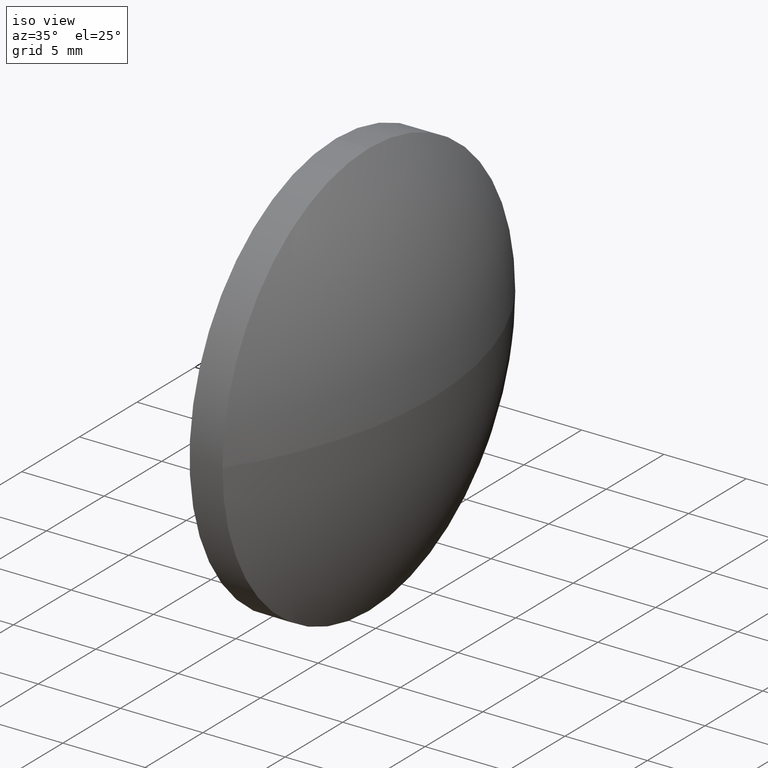
[diagram: clean part render]
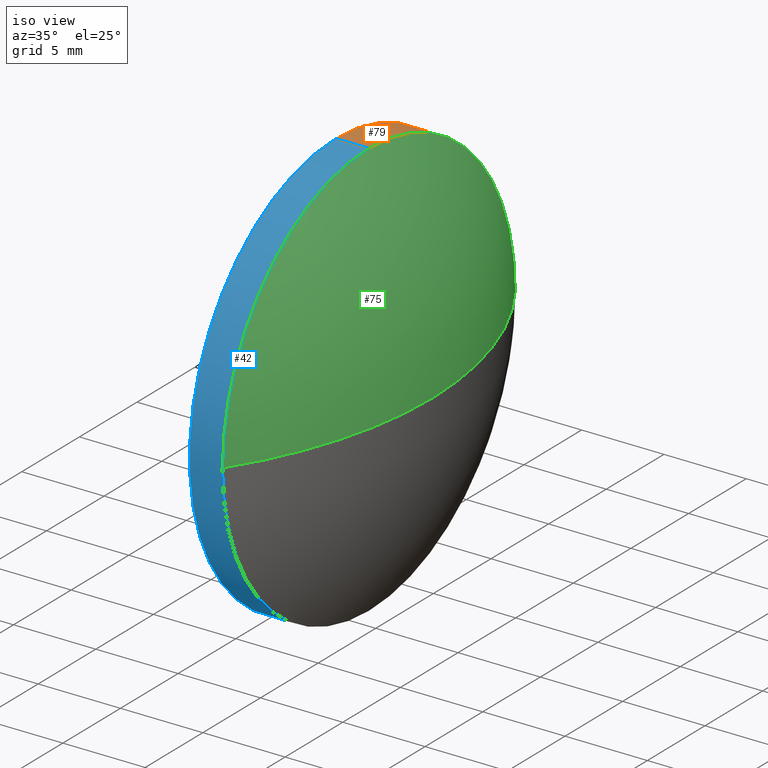
[diagram: same view with three faces highlighted in distinct colors, each labeled with its STEP entity id]
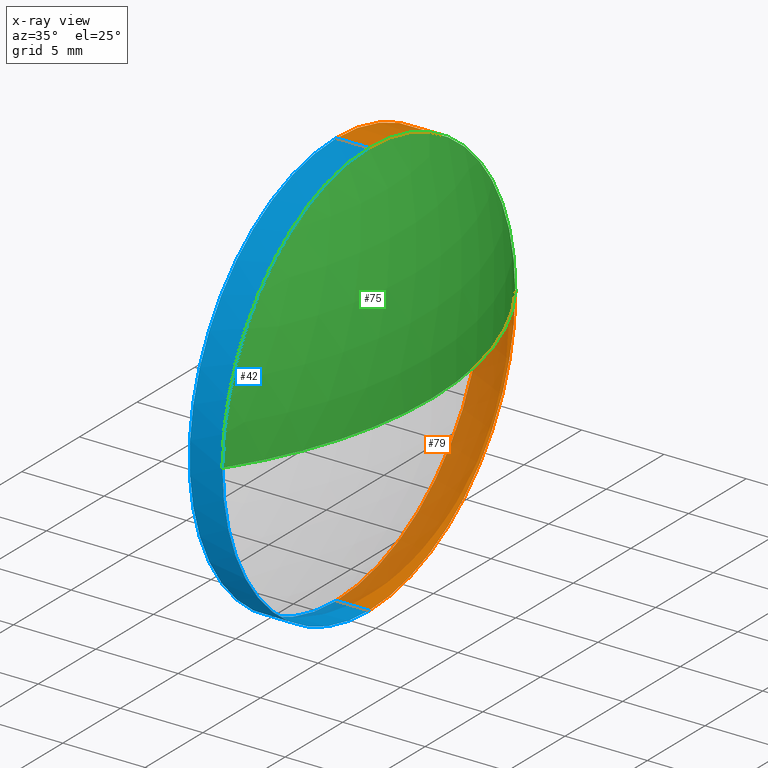
[diagram: x-ray of the same camera — body ghosted, the three highlighted faces saturated]
A machine part, iso view with three faces highlighted in distinct colors.
The next image is the same camera in x-ray (body ghosted, the three faces saturated) — at least one of them is partly hidden behind the body in this view.
Their STEP definitions:

[orange] entity #79 — the highlighted cylindrical surface (partial cylindrical patch) has radius 12.7 mm, axis along (-1, -0, -0).
#1 = CIRCLE ( 'NONE', #15, 12.70000000000001700 ) ;
#2 = LINE ( 'NONE', #144, #158 ) ;
#11 = CARTESIAN_POINT ( 'NONE',  ( 446.5121654917247700, 125.5256010425788700, -12.70000000000001700 ) ) ;
#14 = CARTESIAN_POINT ( 'NONE',  ( 452.2168390391796000, 125.5256010425788700, -12.70000000000001700 ) ) ;
#15 = AXIS2_PLACEMENT_3D ( 'NONE', #163, #28, #183 ) ;
#17 = DIRECTION ( 'NONE',  ( 0.0000000000000000000, 0.0000000000000000000, 1.000000000000000000 ) ) ;
#19 = AXIS2_PLACEMENT_3D ( 'NONE', #148, #121, #17 ) ;
#22 = ORIENTED_EDGE ( 'NONE', *, *, #51, .F. ) ;
#26 = CYLINDRICAL_SURFACE ( 'NONE', #74, 12.70000000000001700 ) ;
#28 = DIRECTION ( 'NONE',  ( -1.000000000000000000, -0.0000000000000000000, -0.0000000000000000000 ) ) ;
#33 = CIRCLE ( 'NONE', #19, 12.70000000000001700 ) ;
#35 = LINE ( 'NONE', #11, #73 ) ;
#38 = ORIENTED_EDGE ( 'NONE', *, *, #115, .T. ) ;
#39 = CARTESIAN_POINT ( 'NONE',  ( 452.2168390391796000, 125.5256010425788700, 12.70000000000001700 ) ) ;
#49 = VERTEX_POINT ( 'NONE', #160 ) ;
#51 = EDGE_CURVE ( 'NONE', #124, #123, #2, .T. ) ;
#61 = VERTEX_POINT ( 'NONE', #131 ) ;
#67 = AXIS2_PLACEMENT_3D ( 'NONE', #146, #116, #149 ) ;
#69 = ORIENTED_EDGE ( 'NONE', *, *, #93, .F. ) ;
#73 = VECTOR ( 'NONE', #83, 1000.000000000000000 ) ;
#74 = AXIS2_PLACEMENT_3D ( 'NONE', #113, #96, #114 ) ;
#76 = DIRECTION ( 'NONE',  ( -1.000000000000000000, -0.0000000000000000000, -0.0000000000000000000 ) ) ;
#79 = ADVANCED_FACE ( 'NONE', ( #118 ), #26, .T. ) ;
#83 = DIRECTION ( 'NONE',  ( -1.000000000000000000, -0.0000000000000000000, -0.0000000000000000000 ) ) ;
#88 = EDGE_LOOP ( 'NONE', ( #38, #139, #69, #22, #112 ) ) ;
#93 = EDGE_CURVE ( 'NONE', #123, #103, #1, .T. ) ;
#96 = DIRECTION ( 'NONE',  ( -1.000000000000000000, -0.0000000000000000000, -0.0000000000000000000 ) ) ;
#103 = VERTEX_POINT ( 'NONE', #14 ) ;
#104 = EDGE_CURVE ( 'NONE', #124, #49, #33, .T. ) ;
#107 = EDGE_CURVE ( 'NONE', #61, #103, #35, .T. ) ;
#112 = ORIENTED_EDGE ( 'NONE', *, *, #104, .T. ) ;
#113 = CARTESIAN_POINT ( 'NONE',  ( 446.5121654917247700, 125.5256010425788700, 0.0000000000000000000 ) ) ;
#114 = DIRECTION ( 'NONE',  ( 0.0000000000000000000, 0.0000000000000000000, 1.000000000000000000 ) ) ;
#115 = EDGE_CURVE ( 'NONE', #49, #61, #161, .T. ) ;
#116 = DIRECTION ( 'NONE',  ( -1.000000000000000000, -0.0000000000000000000, -0.0000000000000000000 ) ) ;
#118 = FACE_OUTER_BOUND ( 'NONE', #88, .T. ) ;
#121 = DIRECTION ( 'NONE',  ( -1.000000000000000000, -0.0000000000000000000, -0.0000000000000000000 ) ) ;
#123 = VERTEX_POINT ( 'NONE', #39 ) ;
#124 = VERTEX_POINT ( 'NONE', #134 ) ;
#131 = CARTESIAN_POINT ( 'NONE',  ( 454.2168390391796000, 125.5256010425788700, -12.70000000000001700 ) ) ;
#134 = CARTESIAN_POINT ( 'NONE',  ( 454.2168390391796000, 125.5256010425788700, 12.70000000000001700 ) ) ;
#139 = ORIENTED_EDGE ( 'NONE', *, *, #107, .T. ) ;
#144 = CARTESIAN_POINT ( 'NONE',  ( 446.5121654917247700, 125.5256010425788700, 12.70000000000001700 ) ) ;
#146 = CARTESIAN_POINT ( 'NONE',  ( 454.2168390391796000, 125.5256010425788700, 0.0000000000000000000 ) ) ;
#148 = CARTESIAN_POINT ( 'NONE',  ( 454.2168390391796000, 125.5256010425788700, 0.0000000000000000000 ) ) ;
#149 = DIRECTION ( 'NONE',  ( 0.0000000000000000000, 0.0000000000000000000, 1.000000000000000000 ) ) ;
#158 = VECTOR ( 'NONE', #76, 1000.000000000000000 ) ;
#160 = CARTESIAN_POINT ( 'NONE',  ( 454.2168390391796000, 138.2256010425788900, 0.0000000000000000000 ) ) ;
#161 = CIRCLE ( 'NONE', #67, 12.70000000000001700 ) ;
#163 = CARTESIAN_POINT ( 'NONE',  ( 452.2168390391796000, 125.5256010425788700, 0.0000000000000000000 ) ) ;
#183 = DIRECTION ( 'NONE',  ( 0.0000000000000000000, 0.0000000000000000000, 1.000000000000000000 ) ) ;

[blue] entity #42 — the highlighted cylindrical surface (partial cylindrical patch) has radius 12.7 mm, axis along (-1, -0, -0).
#2 = LINE ( 'NONE', #144, #158 ) ;
#5 = DIRECTION ( 'NONE',  ( 0.0000000000000000000, 0.0000000000000000000, 1.000000000000000000 ) ) ;
#6 = DIRECTION ( 'NONE',  ( -1.000000000000000000, -0.0000000000000000000, -0.0000000000000000000 ) ) ;
#11 = CARTESIAN_POINT ( 'NONE',  ( 446.5121654917247700, 125.5256010425788700, -12.70000000000001700 ) ) ;
#14 = CARTESIAN_POINT ( 'NONE',  ( 452.2168390391796000, 125.5256010425788700, -12.70000000000001700 ) ) ;
#25 = DIRECTION ( 'NONE',  ( -1.000000000000000000, -0.0000000000000000000, -0.0000000000000000000 ) ) ;
#27 = ORIENTED_EDGE ( 'NONE', *, *, #82, .F. ) ;
#32 = FACE_OUTER_BOUND ( 'NONE', #40, .T. ) ;
#34 = CARTESIAN_POINT ( 'NONE',  ( 452.2168390391796000, 125.5256010425788700, 0.0000000000000000000 ) ) ;
#35 = LINE ( 'NONE', #11, #73 ) ;
#39 = CARTESIAN_POINT ( 'NONE',  ( 452.2168390391796000, 125.5256010425788700, 12.70000000000001700 ) ) ;
#40 = EDGE_LOOP ( 'NONE', ( #71, #48, #133, #184, #27 ) ) ;
#42 = ADVANCED_FACE ( 'NONE', ( #32 ), #143, .T. ) ;
#44 = CARTESIAN_POINT ( 'NONE',  ( 454.2168390391796000, 125.5256010425788700, 0.0000000000000000000 ) ) ;
#48 = ORIENTED_EDGE ( 'NONE', *, *, #72, .T. ) ;
#51 = EDGE_CURVE ( 'NONE', #124, #123, #2, .T. ) ;
#55 = CIRCLE ( 'NONE', #166, 12.70000000000001700 ) ;
#60 = DIRECTION ( 'NONE',  ( 0.0000000000000000000, 0.0000000000000000000, 1.000000000000000000 ) ) ;
#61 = VERTEX_POINT ( 'NONE', #131 ) ;
#71 = ORIENTED_EDGE ( 'NONE', *, *, #107, .F. ) ;
#72 = EDGE_CURVE ( 'NONE', #61, #94, #81, .T. ) ;
#73 = VECTOR ( 'NONE', #83, 1000.000000000000000 ) ;
#76 = DIRECTION ( 'NONE',  ( -1.000000000000000000, -0.0000000000000000000, -0.0000000000000000000 ) ) ;
#80 = DIRECTION ( 'NONE',  ( -1.000000000000000000, -0.0000000000000000000, -0.0000000000000000000 ) ) ;
#81 = CIRCLE ( 'NONE', #138, 12.70000000000001700 ) ;
#82 = EDGE_CURVE ( 'NONE', #103, #123, #91, .T. ) ;
#83 = DIRECTION ( 'NONE',  ( -1.000000000000000000, -0.0000000000000000000, -0.0000000000000000000 ) ) ;
#89 = AXIS2_PLACEMENT_3D ( 'NONE', #34, #6, #97 ) ;
#91 = CIRCLE ( 'NONE', #89, 12.70000000000001700 ) ;
#94 = VERTEX_POINT ( 'NONE', #111 ) ;
#97 = DIRECTION ( 'NONE',  ( 0.0000000000000000000, 0.0000000000000000000, 1.000000000000000000 ) ) ;
#99 = DIRECTION ( 'NONE',  ( 0.0000000000000000000, 0.0000000000000000000, 1.000000000000000000 ) ) ;
#103 = VERTEX_POINT ( 'NONE', #14 ) ;
#105 = AXIS2_PLACEMENT_3D ( 'NONE', #130, #25, #60 ) ;
#107 = EDGE_CURVE ( 'NONE', #61, #103, #35, .T. ) ;
#111 = CARTESIAN_POINT ( 'NONE',  ( 454.2168390391796000, 112.8256010425788500, -1.555301434917140200E-015 ) ) ;
#117 = CARTESIAN_POINT ( 'NONE',  ( 454.2168390391796000, 125.5256010425788700, 0.0000000000000000000 ) ) ;
#122 = DIRECTION ( 'NONE',  ( -1.000000000000000000, -0.0000000000000000000, -0.0000000000000000000 ) ) ;
#123 = VERTEX_POINT ( 'NONE', #39 ) ;
#124 = VERTEX_POINT ( 'NONE', #134 ) ;
#126 = EDGE_CURVE ( 'NONE', #94, #124, #55, .T. ) ;
#130 = CARTESIAN_POINT ( 'NONE',  ( 446.5121654917247700, 125.5256010425788700, 0.0000000000000000000 ) ) ;
#131 = CARTESIAN_POINT ( 'NONE',  ( 454.2168390391796000, 125.5256010425788700, -12.70000000000001700 ) ) ;
#133 = ORIENTED_EDGE ( 'NONE', *, *, #126, .T. ) ;
#134 = CARTESIAN_POINT ( 'NONE',  ( 454.2168390391796000, 125.5256010425788700, 12.70000000000001700 ) ) ;
#138 = AXIS2_PLACEMENT_3D ( 'NONE', #44, #80, #5 ) ;
#143 = CYLINDRICAL_SURFACE ( 'NONE', #105, 12.70000000000001700 ) ;
#144 = CARTESIAN_POINT ( 'NONE',  ( 446.5121654917247700, 125.5256010425788700, 12.70000000000001700 ) ) ;
#158 = VECTOR ( 'NONE', #76, 1000.000000000000000 ) ;
#166 = AXIS2_PLACEMENT_3D ( 'NONE', #117, #122, #99 ) ;
#184 = ORIENTED_EDGE ( 'NONE', *, *, #51, .T. ) ;

[green] entity #75 — the highlighted spherical surface has radius 22.9213 mm.
#4 = ORIENTED_EDGE ( 'NONE', *, *, #59, .T. ) ;
#17 = DIRECTION ( 'NONE',  ( 0.0000000000000000000, 0.0000000000000000000, 1.000000000000000000 ) ) ;
#19 = AXIS2_PLACEMENT_3D ( 'NONE', #148, #121, #17 ) ;
#24 = FACE_OUTER_BOUND ( 'NONE', #98, .T. ) ;
#33 = CIRCLE ( 'NONE', #19, 12.70000000000001700 ) ;
#45 = AXIS2_PLACEMENT_3D ( 'NONE', #162, #179, #77 ) ;
#49 = VERTEX_POINT ( 'NONE', #160 ) ;
#55 = CIRCLE ( 'NONE', #166, 12.70000000000001700 ) ;
#56 = AXIS2_PLACEMENT_3D ( 'NONE', #65, #110, #159 ) ;
#58 = EDGE_CURVE ( 'NONE', #62, #94, #64, .T. ) ;
#59 = EDGE_CURVE ( 'NONE', #62, #49, #141, .T. ) ;
#62 = VERTEX_POINT ( 'NONE', #180 ) ;
#64 = CIRCLE ( 'NONE', #56, 22.92130208333331600 ) ;
#65 = CARTESIAN_POINT ( 'NONE',  ( 435.1355369558463100, 125.5256010425788700, 0.0000000000000000000 ) ) ;
#75 = ADVANCED_FACE ( 'NONE', ( #24 ), #145, .T. ) ;
#77 = DIRECTION ( 'NONE',  ( 0.0000000000000000000, 1.000000000000000000, 0.0000000000000000000 ) ) ;
#94 = VERTEX_POINT ( 'NONE', #111 ) ;
#98 = EDGE_LOOP ( 'NONE', ( #175, #4, #176, #109 ) ) ;
#99 = DIRECTION ( 'NONE',  ( 0.0000000000000000000, 0.0000000000000000000, 1.000000000000000000 ) ) ;
#104 = EDGE_CURVE ( 'NONE', #124, #49, #33, .T. ) ;
#109 = ORIENTED_EDGE ( 'NONE', *, *, #126, .F. ) ;
#110 = DIRECTION ( 'NONE',  ( 0.0000000000000000000, 1.224646799147353200E-016, -1.000000000000000000 ) ) ;
#111 = CARTESIAN_POINT ( 'NONE',  ( 454.2168390391796000, 112.8256010425788500, -1.555301434917140200E-015 ) ) ;
#117 = CARTESIAN_POINT ( 'NONE',  ( 454.2168390391796000, 125.5256010425788700, 0.0000000000000000000 ) ) ;
#121 = DIRECTION ( 'NONE',  ( -1.000000000000000000, -0.0000000000000000000, -0.0000000000000000000 ) ) ;
#122 = DIRECTION ( 'NONE',  ( -1.000000000000000000, -0.0000000000000000000, -0.0000000000000000000 ) ) ;
#124 = VERTEX_POINT ( 'NONE', #134 ) ;
#125 = AXIS2_PLACEMENT_3D ( 'NONE', #129, #128, #181 ) ;
#126 = EDGE_CURVE ( 'NONE', #94, #124, #55, .T. ) ;
#128 = DIRECTION ( 'NONE',  ( -0.0000000000000000000, 0.0000000000000000000, 1.000000000000000000 ) ) ;
#129 = CARTESIAN_POINT ( 'NONE',  ( 435.1355369558463100, 125.5256010425788700, 0.0000000000000000000 ) ) ;
#134 = CARTESIAN_POINT ( 'NONE',  ( 454.2168390391796000, 125.5256010425788700, 12.70000000000001700 ) ) ;
#141 = CIRCLE ( 'NONE', #125, 22.92130208333331600 ) ;
#145 = SPHERICAL_SURFACE ( 'NONE', #45, 22.92130208333331600 ) ;
#148 = CARTESIAN_POINT ( 'NONE',  ( 454.2168390391796000, 125.5256010425788700, 0.0000000000000000000 ) ) ;
#159 = DIRECTION ( 'NONE',  ( 0.0000000000000000000, 1.000000000000000000, 1.224646799147353200E-016 ) ) ;
#160 = CARTESIAN_POINT ( 'NONE',  ( 454.2168390391796000, 138.2256010425788900, 0.0000000000000000000 ) ) ;
#162 = CARTESIAN_POINT ( 'NONE',  ( 435.1355369558463100, 125.5256010425788700, 0.0000000000000000000 ) ) ;
#166 = AXIS2_PLACEMENT_3D ( 'NONE', #117, #122, #99 ) ;
#175 = ORIENTED_EDGE ( 'NONE', *, *, #58, .F. ) ;
#176 = ORIENTED_EDGE ( 'NONE', *, *, #104, .F. ) ;
#179 = DIRECTION ( 'NONE',  ( -0.0000000000000000000, 0.0000000000000000000, -1.000000000000000000 ) ) ;
#180 = CARTESIAN_POINT ( 'NONE',  ( 458.0568390391795800, 125.5256010425788700, 0.0000000000000000000 ) ) ;
#181 = DIRECTION ( 'NONE',  ( 1.000000000000000000, 0.0000000000000000000, 0.0000000000000000000 ) ) ;